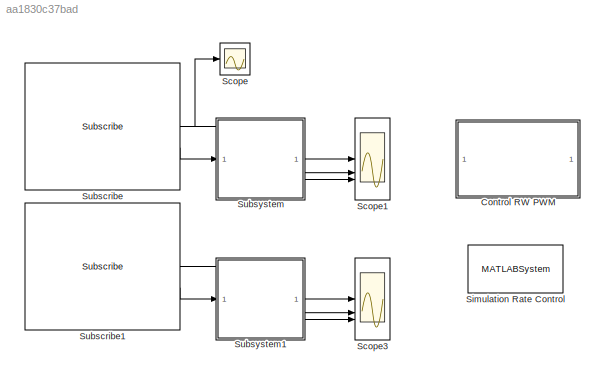
MODEL slx_aa1830c37bad
KIND model
CONFIG AbsTol = auto
CONFIG EnableMultiTasking = on
CONFIG FixedStep = 0.01
CONFIG MaxStep = auto
CONFIG MinStep = auto
CONFIG PreLoadFcn = setenv('ROS_MASTER_URI','http://192.168.56.101:11311');\nsetenv('ROS_IP','192.168.56.1');\nrosinit('http://192.168.56.101:11311',...\n    'NodeHost','192.168.56.1',...\n    'NodeName','/test_node');
CONFIG RelTol = 1e-3
CONFIG SampleTimeConstraint = Unconstrained
CONFIG SolverName = FixedStepDiscrete
CONFIG StartTime = 0.0
CONFIG StopTime = inf
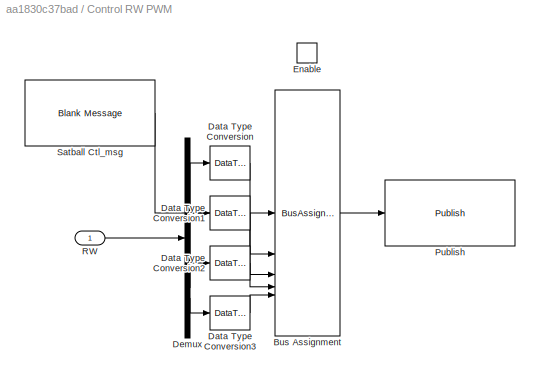
BLOCK [SubSystem] Control RW PWM
BLOCK [BusAssignment] Control RW PWM/Bus Assignment
  AssignedSignals = Quaternion.X,Quaternion.Y,Quaternion.Z,Quaternion.W
BLOCK [DataTypeConversion] Control RW PWM/Data Type Conversion
  OutDataTypeStr = uint8
  RndMeth = Floor
BLOCK [DataTypeConversion] Control RW PWM/Data Type Conversion1
  OutDataTypeStr = uint8
  RndMeth = Floor
BLOCK [DataTypeConversion] Control RW PWM/Data Type Conversion2
  OutDataTypeStr = uint8
  RndMeth = Floor
BLOCK [DataTypeConversion] Control RW PWM/Data Type Conversion3
  OutDataTypeStr = uint8
  RndMeth = Floor
BLOCK [Demux] Control RW PWM/Demux
BLOCK [EnablePort] Control RW PWM/Enable
BLOCK [Reference] Control RW PWM/Publish  REF=robotlib/Publish
  SourceBlock = robotlib/Publish
  SourceType = ROS Publish
BLOCK [Inport] Control RW PWM/RW
BLOCK [Reference] Control RW PWM/Satball Ctl_msg  REF=robotlib/Blank Message
  SourceBlock = robotlib/Blank Message
  SourceType = ROS Blank Message
BLOCK [Scope] Scope
  Floating = off
  NumInputPorts = 1
  ScopeSpecificationString = Simulink.scopes.TimeScopeBlockCfg('CurrentConfiguration', extmgr.ConfigurationSet(extmgr.Configuration('Core','General UI',true),extmgr.Configuration('Core','Source UI',true),extmgr.Configuration('Sources','WiredSimulink',true),extmgr.Configuration('Visuals','Time Domain',true,'SerializedDisplays',{struct('MinYLimReal','-0.125','MaxYLimReal','1.125','YLabelReal','','MinYLimMag','0.00000','MaxYLimM...<+1371ch>
BLOCK [Scope] Scope1
  Floating = off
  NumInputPorts = 3
  ScopeSpecificationString = Simulink.scopes.TimeScopeBlockCfg('CurrentConfiguration', extmgr.ConfigurationSet(extmgr.Configuration('Core','General UI',true),extmgr.Configuration('Core','Source UI',true),extmgr.Configuration('Sources','WiredSimulink',true,'DataLoggingVariableName','ScopeData1'),extmgr.Configuration('Visuals','Time Domain',true,'SerializedDisplays',{struct('MinYLimReal','-16257.00000','MaxYLimReal','22833.0000...<+1520ch>
BLOCK [Scope] Scope3
  Floating = off
  NumInputPorts = 3
  ScopeSpecificationString = Simulink.scopes.TimeScopeBlockCfg('CurrentConfiguration', extmgr.ConfigurationSet(extmgr.Configuration('Core','General UI',true),extmgr.Configuration('Core','Source UI',true),extmgr.Configuration('Sources','WiredSimulink',true,'DataLoggingVariableName','ScopeData3'),extmgr.Configuration('Visuals','Time Domain',true,'SerializedDisplays',{struct('MinYLimReal','-282.75','MaxYLimReal','234.75','YLabel...<+1498ch>
BLOCK [MATLABSystem] Simulation Rate Control
  MaskDisplay = disp('Rate Control');
  MaskType = ExampleHelperSimulationRateControl
  SampleTime = 0.01
  System = ExampleHelperSimulationRateControl
BLOCK [Reference] Subscribe  REF=robotlib/Subscribe
  SourceBlock = robotlib/Subscribe
  SourceType = ROS Subscribe
BLOCK [Reference] Subscribe1  REF=robotlib/Subscribe
  SourceBlock = robotlib/Subscribe
  SourceType = ROS Subscribe
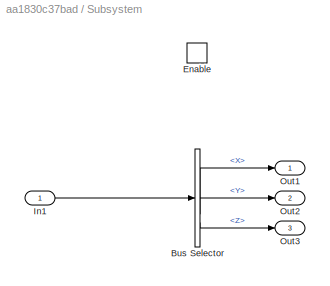
BLOCK [SubSystem] Subsystem
BLOCK [BusSelector] Subsystem/Bus Selector
  OutputSignals = LinearAcceleration.X,LinearAcceleration.Y,LinearAcceleration.Z
BLOCK [EnablePort] Subsystem/Enable
BLOCK [Inport] Subsystem/In1
BLOCK [Outport] Subsystem/Out1
BLOCK [Outport] Subsystem/Out2
  Port = 2
BLOCK [Outport] Subsystem/Out3
  Port = 3
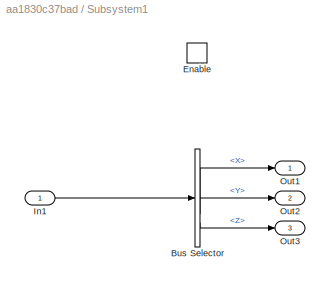
BLOCK [SubSystem] Subsystem1
BLOCK [BusSelector] Subsystem1/Bus Selector
  OutputSignals = MagneticField_.X,MagneticField_.Y,MagneticField_.Z
BLOCK [EnablePort] Subsystem1/Enable
BLOCK [Inport] Subsystem1/In1
BLOCK [Outport] Subsystem1/Out1
BLOCK [Outport] Subsystem1/Out2
  Port = 2
BLOCK [Outport] Subsystem1/Out3
  Port = 3
LINE Control RW PWM/Bus Assignment:1 -> Control RW PWM/Publish:1
LINE Control RW PWM/Data Type Conversion1:1 -> Control RW PWM/Bus Assignment:3
LINE Control RW PWM/Data Type Conversion2:1 -> Control RW PWM/Bus Assignment:4
LINE Control RW PWM/Data Type Conversion3:1 -> Control RW PWM/Bus Assignment:5
LINE Control RW PWM/Data Type Conversion:1 -> Control RW PWM/Bus Assignment:2
LINE Control RW PWM/Demux:1 -> Control RW PWM/Data Type Conversion:1
LINE Control RW PWM/Demux:2 -> Control RW PWM/Data Type Conversion1:1
LINE Control RW PWM/Demux:3 -> Control RW PWM/Data Type Conversion2:1
LINE Control RW PWM/Demux:4 -> Control RW PWM/Data Type Conversion3:1
LINE Control RW PWM/RW:1 -> Control RW PWM/Demux:1
LINE Control RW PWM/Satball Ctl_msg:1 -> Control RW PWM/Bus Assignment:1
LINE Subscribe1:1 -> Subsystem1:enable
LINE Subscribe1:2 -> Subsystem1:1
NET Subscribe:1 -> Scope:1, Subsystem:enable
LINE Subscribe:2 -> Subsystem:1
LINE Subsystem/Bus Selector:1 -> Subsystem/Out1:1
LINE Subsystem/Bus Selector:2 -> Subsystem/Out2:1
LINE Subsystem/Bus Selector:3 -> Subsystem/Out3:1
LINE Subsystem/In1:1 -> Subsystem/Bus Selector:1
LINE Subsystem1/Bus Selector:1 -> Subsystem1/Out1:1
LINE Subsystem1/Bus Selector:2 -> Subsystem1/Out2:1
LINE Subsystem1/Bus Selector:3 -> Subsystem1/Out3:1
LINE Subsystem1/In1:1 -> Subsystem1/Bus Selector:1
LINE Subsystem1:1 -> Scope3:1
LINE Subsystem1:2 -> Scope3:2
LINE Subsystem1:3 -> Scope3:3
LINE Subsystem:1 -> Scope1:1
LINE Subsystem:2 -> Scope1:2
LINE Subsystem:3 -> Scope1:3
note: NET lines group one-source signal fan-out (src -> all destinations, sorted); 1:1 wires keep LINE
